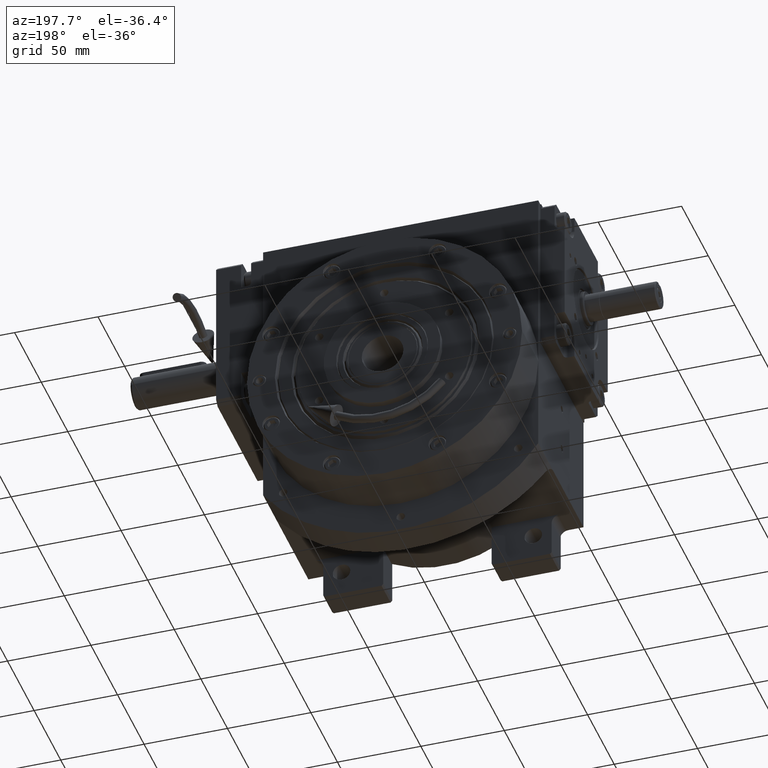
[diagram: clean part render]
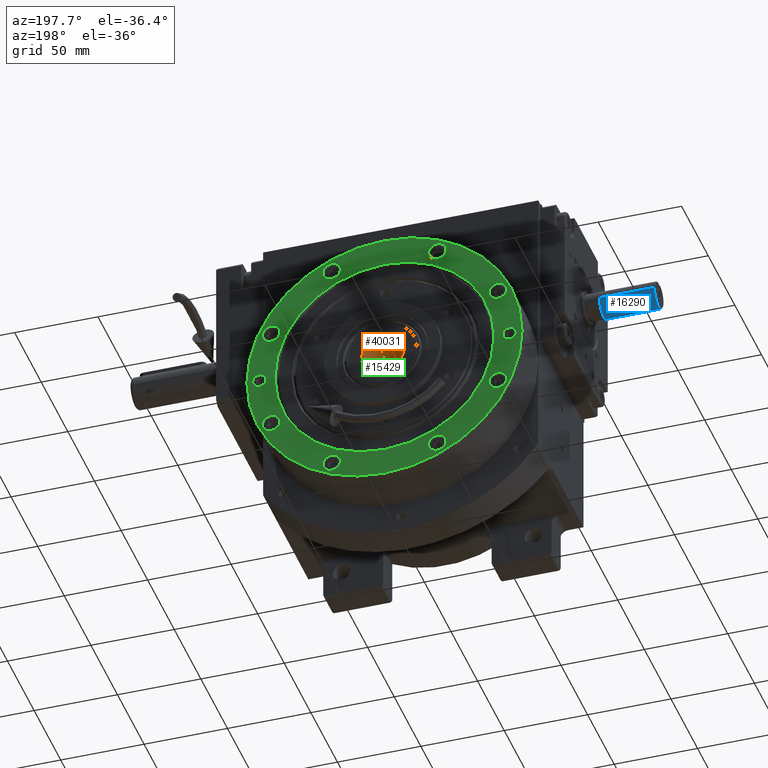
[diagram: same view with three faces highlighted in distinct colors, each labeled with its STEP entity id]
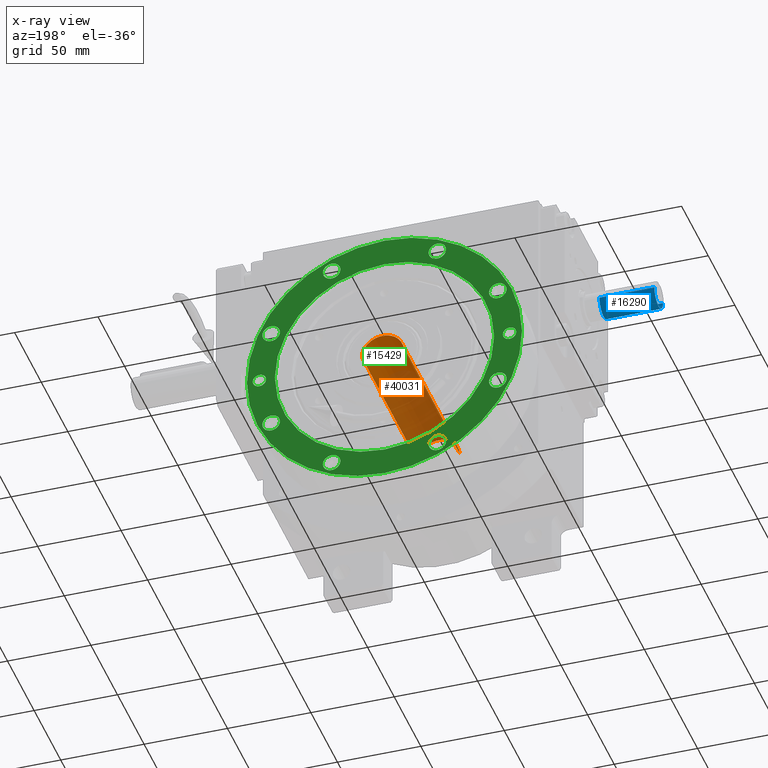
[diagram: x-ray of the same camera — body ghosted, the three highlighted faces saturated]
A machine part, auxiliary view with three faces highlighted in distinct colors.
The next image is the same camera in x-ray (body ghosted, the three faces saturated) — at least one of them is partly hidden behind the body in this view.
Their STEP definitions:

[orange] entity #40031 — the highlighted cylindrical surface (edge-blend (fillet) strip) has radius 12.5 mm, axis along (0, -1, 0).
#1316 = ORIENTED_EDGE ( 'NONE', *, *, #71562, .T. ) ;
#1391 = CARTESIAN_POINT ( 'NONE',  ( 0.000000000000000000, 0.000000000000000000, 11.99999999999986677 ) ) ;
#1482 = DIRECTION ( 'NONE',  ( -1.000000000000000000, 0.000000000000000000, 0.000000000000000000 ) ) ;
#3421 = VERTEX_POINT ( 'NONE', #45097 ) ;
#3907 = EDGE_CURVE ( 'NONE', #3421, #25328, #58682, .T. ) ;
#8413 = AXIS2_PLACEMENT_3D ( 'NONE', #35480, #69776, #1482 ) ;
#12943 = CYLINDRICAL_SURFACE ( 'NONE', #8413, 12.50000000000000000 ) ;
#15802 = DIRECTION ( 'NONE',  ( 0.000000000000000000, 0.000000000000000000, -1.000000000000000000 ) ) ;
#17930 = VECTOR ( 'NONE', #15802, 1000.000000000000000 ) ;
#19387 = VERTEX_POINT ( 'NONE', #57423 ) ;
#20813 = VECTOR ( 'NONE', #55959, 1000.000000000000000 ) ;
#22859 = DIRECTION ( 'NONE',  ( -1.000000000000000000, 0.000000000000000000, 0.000000000000000000 ) ) ;
#25328 = VERTEX_POINT ( 'NONE', #34614 ) ;
#26867 = AXIS2_PLACEMENT_3D ( 'NONE', #1391, #50915, #22859 ) ;
#31714 = LINE ( 'NONE', #49416, #17930 ) ;
#33248 = CARTESIAN_POINT ( 'NONE',  ( -12.50000000000000000, 7.343775652694783940E-16, -93.49999999999894840 ) ) ;
#34614 = CARTESIAN_POINT ( 'NONE',  ( 12.50000000000000000, 1.245138432463821498E-15, 11.99999999999986677 ) ) ;
#35480 = CARTESIAN_POINT ( 'NONE',  ( 0.000000000000000000, 2.203979728755689482E-15, 11.99999999999986677 ) ) ;
#36015 = EDGE_CURVE ( 'NONE', #42532, #19387, #49209, .T. ) ;
#36368 = DIRECTION ( 'NONE',  ( -1.000000000000000000, 0.000000000000000000, 0.000000000000000000 ) ) ;
#37568 = ORIENTED_EDGE ( 'NONE', *, *, #3907, .F. ) ;
#39332 = CARTESIAN_POINT ( 'NONE',  ( -12.50000000000000000, 2.203979728755689482E-15, 11.99999999999986677 ) ) ;
#39816 = AXIS2_PLACEMENT_3D ( 'NONE', #51923, #41559, #36368 ) ;
#40031 = ADVANCED_FACE ( 'NONE', ( #55814 ), #12943, .F. ) ;
#41559 = DIRECTION ( 'NONE',  ( 0.000000000000000000, 0.000000000000000000, -1.000000000000000000 ) ) ;
#42532 = VERTEX_POINT ( 'NONE', #33248 ) ;
#45097 = CARTESIAN_POINT ( 'NONE',  ( -12.50000000000000000, 7.343775652694783940E-16, 11.99999999999986677 ) ) ;
#47519 = EDGE_LOOP ( 'NONE', ( #1316, #70403, #58857, #37568 ) ) ;
#49209 = CIRCLE ( 'NONE', #39816, 12.50000000000000000 ) ;
#49416 = CARTESIAN_POINT ( 'NONE',  ( 12.50000000000000000, 3.735415297391464495E-15, 11.99999999999986677 ) ) ;
#50915 = DIRECTION ( 'NONE',  ( 0.000000000000000000, 0.000000000000000000, -1.000000000000000000 ) ) ;
#51923 = CARTESIAN_POINT ( 'NONE',  ( 0.000000000000000000, 0.000000000000000000, -93.49999999999894840 ) ) ;
#55814 = FACE_OUTER_BOUND ( 'NONE', #47519, .T. ) ;
#55959 = DIRECTION ( 'NONE',  ( 0.000000000000000000, 0.000000000000000000, -1.000000000000000000 ) ) ;
#57423 = CARTESIAN_POINT ( 'NONE',  ( 12.50000000000000000, 1.245138432463821498E-15, -93.49999999999894840 ) ) ;
#58682 = CIRCLE ( 'NONE', #26867, 12.50000000000000000 ) ;
#58857 = ORIENTED_EDGE ( 'NONE', *, *, #66702, .F. ) ;
#61469 = LINE ( 'NONE', #39332, #20813 ) ;
#66702 = EDGE_CURVE ( 'NONE', #25328, #19387, #31714, .T. ) ;
#69776 = DIRECTION ( 'NONE',  ( 0.000000000000000000, 0.000000000000000000, 1.000000000000000000 ) ) ;
#70403 = ORIENTED_EDGE ( 'NONE', *, *, #36015, .T. ) ;
#71562 = EDGE_CURVE ( 'NONE', #3421, #42532, #61469, .T. ) ;

[blue] entity #16290 — the highlighted cylindrical surface (edge-blend (fillet) strip) has radius 8 mm, axis along (-1, -0, 0).
#176 = CARTESIAN_POINT ( 'NONE',  ( -6.106226635438360972E-13, -14.50000000000001243, -8.000000000000101252 ) ) ;
#217 = AXIS2_PLACEMENT_3D ( 'NONE', #7861, #30426, #24170 ) ;
#4714 = ORIENTED_EDGE ( 'NONE', *, *, #49045, .F. ) ;
#5266 = VECTOR ( 'NONE', #9785, 1000.000000000000000 ) ;
#7133 = CYLINDRICAL_SURFACE ( 'NONE', #217, 8.000000000000000000 ) ;
#7215 = DIRECTION ( 'NONE',  ( -2.220446049250370273E-16, -1.000000000000000000, 2.220446049249956368E-16 ) ) ;
#7861 = CARTESIAN_POINT ( 'NONE',  ( -8.326672684688674053E-14, -15.00000000000001421, -2.785665071561697938E-27 ) ) ;
#9785 = DIRECTION ( 'NONE',  ( 5.028988270783950259E-30, 1.000000000000000000, 3.229378983239138002E-29 ) ) ;
#10875 = CARTESIAN_POINT ( 'NONE',  ( 0.000000000000000000, 18.50000000000054357, -8.881784196996637487E-16 ) ) ;
#14485 = VERTEX_POINT ( 'NONE', #22845 ) ;
#16290 = ADVANCED_FACE ( 'NONE', ( #41159 ), #7133, .T. ) ;
#17152 = AXIS2_PLACEMENT_3D ( 'NONE', #53037, #7215, #34565 ) ;
#17584 = DIRECTION ( 'NONE',  ( 5.028988270783950259E-30, 1.000000000000000000, 3.229378983239138002E-29 ) ) ;
#18296 = CARTESIAN_POINT ( 'NONE',  ( -5.551115123125782702E-14, 18.50000000000054357, -8.000000000000101252 ) ) ;
#22733 = EDGE_CURVE ( 'NONE', #66054, #56257, #49352, .T. ) ;
#22845 = CARTESIAN_POINT ( 'NONE',  ( -8.326672684688674053E-14, 18.50000000000054357, -8.000000000000101252 ) ) ;
#22988 = ORIENTED_EDGE ( 'NONE', *, *, #22733, .F. ) ;
#23247 = VECTOR ( 'NONE', #40837, 1000.000000000000000 ) ;
#24170 = DIRECTION ( 'NONE',  ( -1.809663530139005476E-14, 0.000000000000000000, -1.000000000000000000 ) ) ;
#30426 = DIRECTION ( 'NONE',  ( -5.028988270783950259E-30, -1.000000000000000000, -3.229378983239138002E-29 ) ) ;
#30471 = LINE ( 'NONE', #18296, #23247 ) ;
#34565 = DIRECTION ( 'NONE',  ( -1.774068363909806881E-14, -2.168404344971008868E-16, -1.000000000000000000 ) ) ;
#37087 = ORIENTED_EDGE ( 'NONE', *, *, #71696, .F. ) ;
#38251 = CARTESIAN_POINT ( 'NONE',  ( 7.494005416219806648E-13, -14.50000000000001243, 7.999999999999899636 ) ) ;
#40837 = DIRECTION ( 'NONE',  ( -5.028988270783950259E-30, -1.000000000000000000, -3.229378983239138002E-29 ) ) ;
#41159 = FACE_OUTER_BOUND ( 'NONE', #43372, .T. ) ;
#43372 = EDGE_LOOP ( 'NONE', ( #37087, #52684, #22988, #4714 ) ) ;
#48899 = AXIS2_PLACEMENT_3D ( 'NONE', #10875, #17584, #56704 ) ;
#49045 = EDGE_CURVE ( 'NONE', #67851, #66054, #69003, .T. ) ;
#49352 = LINE ( 'NONE', #38251, #5266 ) ;
#52684 = ORIENTED_EDGE ( 'NONE', *, *, #67962, .F. ) ;
#53037 = CARTESIAN_POINT ( 'NONE',  ( -8.326672684688674053E-14, -14.50000000000001243, -8.881784197022707368E-16 ) ) ;
#53655 = CIRCLE ( 'NONE', #48899, 8.000000000000000000 ) ;
#56257 = VERTEX_POINT ( 'NONE', #57671 ) ;
#56305 = CARTESIAN_POINT ( 'NONE',  ( 1.065506016750816798E-08, -14.50000000007528556, 7.999999999924608751 ) ) ;
#56704 = DIRECTION ( 'NONE',  ( 1.797417062147531962E-14, 0.000000000000000000, 1.000000000000000000 ) ) ;
#57671 = CARTESIAN_POINT ( 'NONE',  ( 5.273559366969493567E-13, 18.50000000000054357, 7.999999999999899636 ) ) ;
#66054 = VERTEX_POINT ( 'NONE', #56305 ) ;
#67851 = VERTEX_POINT ( 'NONE', #176 ) ;
#67962 = EDGE_CURVE ( 'NONE', #56257, #14485, #53655, .T. ) ;
#69003 = CIRCLE ( 'NONE', #17152, 8.000000000000000000 ) ;
#71696 = EDGE_CURVE ( 'NONE', #14485, #67851, #30471, .T. ) ;

[green] entity #15429 — the highlighted planar face has unit normal (0, 1, 0).
#469 = ORIENTED_EDGE ( 'NONE', *, *, #10626, .F. ) ;
#869 = CARTESIAN_POINT ( 'NONE',  ( 78.99999999999998579, 0.000000000000000000, 30.49999999999998579 ) ) ;
#1079 = CARTESIAN_POINT ( 'NONE',  ( 67.97308402774999081, -31.69636963055000223, 30.49999999999998579 ) ) ;
#1538 = EDGE_CURVE ( 'NONE', #57449, #18205, #58363, .T. ) ;
#1681 = EDGE_LOOP ( 'NONE', ( #52790, #57513 ) ) ;
#1697 = AXIS2_PLACEMENT_3D ( 'NONE', #17648, #18005, #63029 ) ;
#1701 = AXIS2_PLACEMENT_3D ( 'NONE', #15115, #32840, #27279 ) ;
#1981 = VERTEX_POINT ( 'NONE', #11374 ) ;
#2376 = ORIENTED_EDGE ( 'NONE', *, *, #42807, .F. ) ;
#2611 = EDGE_LOOP ( 'NONE', ( #4229, #24215 ) ) ;
#3260 = CARTESIAN_POINT ( 'NONE',  ( 67.97308402774999081, 31.69636963055000223, 30.49999999999998579 ) ) ;
#3492 = ORIENTED_EDGE ( 'NONE', *, *, #1538, .T. ) ;
#3794 = DIRECTION ( 'NONE',  ( 0.000000000000000000, 0.000000000000000000, 1.000000000000000000 ) ) ;
#3918 = ORIENTED_EDGE ( 'NONE', *, *, #48040, .T. ) ;
#4229 = ORIENTED_EDGE ( 'NONE', *, *, #62487, .F. ) ;
#5379 = VERTEX_POINT ( 'NONE', #52303 ) ;
#5516 = ORIENTED_EDGE ( 'NONE', *, *, #43937, .T. ) ;
#7055 = AXIS2_PLACEMENT_3D ( 'NONE', #72183, #20964, #22409 ) ;
#7336 = DIRECTION ( 'NONE',  ( -1.000000000000000000, 0.000000000000000000, 0.000000000000000000 ) ) ;
#7669 = CIRCLE ( 'NONE', #30111, 5.249999999999997335 ) ;
#7707 = AXIS2_PLACEMENT_3D ( 'NONE', #15123, #66075, #48370 ) ;
#7837 = EDGE_CURVE ( 'NONE', #21173, #8966, #7669, .T. ) ;
#8152 = ORIENTED_EDGE ( 'NONE', *, *, #51366, .F. ) ;
#8206 = VERTEX_POINT ( 'NONE', #869 ) ;
#8315 = VERTEX_POINT ( 'NONE', #24543 ) ;
#8326 = AXIS2_PLACEMENT_3D ( 'NONE', #3260, #25836, #48338 ) ;
#8540 = CARTESIAN_POINT ( 'NONE',  ( 36.94636963055000223, -67.97308402775000502, 30.49999999999998579 ) ) ;
#8610 = EDGE_CURVE ( 'NONE', #24374, #22148, #18361, .T. ) ;
#8780 = VERTEX_POINT ( 'NONE', #30961 ) ;
#8801 = EDGE_LOOP ( 'NONE', ( #2376, #36050 ) ) ;
#8852 = FACE_BOUND ( 'NONE', #2611, .T. ) ;
#8966 = VERTEX_POINT ( 'NONE', #71869 ) ;
#9001 = DIRECTION ( 'NONE',  ( 1.000000000000000000, 0.000000000000000000, 0.000000000000000000 ) ) ;
#9298 = DIRECTION ( 'NONE',  ( 0.000000000000000000, 0.000000000000000000, 1.000000000000000000 ) ) ;
#9380 = CARTESIAN_POINT ( 'NONE',  ( 0.000000000000000000, 0.000000000000000000, 30.49999999999998579 ) ) ;
#10144 = CIRCLE ( 'NONE', #31379, 5.250000000000004441 ) ;
#10432 = DIRECTION ( 'NONE',  ( 0.000000000000000000, 0.000000000000000000, -1.000000000000000000 ) ) ;
#10626 = EDGE_CURVE ( 'NONE', #69039, #63281, #31100, .T. ) ;
#11311 = AXIS2_PLACEMENT_3D ( 'NONE', #71357, #3794, #15629 ) ;
#11374 = CARTESIAN_POINT ( 'NONE',  ( -26.44636963054999867, 67.97308402775000502, 30.49999999999998579 ) ) ;
#12546 = EDGE_CURVE ( 'NONE', #63281, #69039, #47850, .T. ) ;
#13358 = DIRECTION ( 'NONE',  ( 0.000000000000000000, 0.000000000000000000, 1.000000000000000000 ) ) ;
#13761 = EDGE_LOOP ( 'NONE', ( #3918, #66646 ) ) ;
#14168 = CARTESIAN_POINT ( 'NONE',  ( 26.44636963054999867, -67.97308402775000502, 30.49999999999998579 ) ) ;
#14312 = AXIS2_PLACEMENT_3D ( 'NONE', #64844, #65203, #31234 ) ;
#14396 = FACE_BOUND ( 'NONE', #39495, .T. ) ;
#15078 = ORIENTED_EDGE ( 'NONE', *, *, #17703, .T. ) ;
#15115 = CARTESIAN_POINT ( 'NONE',  ( -31.69636963055000223, 67.97308402775000502, 30.49999999999998579 ) ) ;
#15123 = CARTESIAN_POINT ( 'NONE',  ( -67.97308402775001923, -31.69636963055000223, 30.49999999999998579 ) ) ;
#15429 = ADVANCED_FACE ( 'NONE', ( #45923, #68426, #62882, #48400, #8852, #70520, #38027, #49484, #48038, #53947, #36910, #14396 ), #65747, .T. ) ;
#15629 = DIRECTION ( 'NONE',  ( -1.000000000000000000, 0.000000000000000000, 0.000000000000000000 ) ) ;
#16478 = DIRECTION ( 'NONE',  ( 1.000000000000000000, 0.000000000000000000, 0.000000000000000000 ) ) ;
#16515 = CIRCLE ( 'NONE', #7055, 5.250000000000000888 ) ;
#16534 = CIRCLE ( 'NONE', #36590, 4.000000000000003553 ) ;
#16639 = CIRCLE ( 'NONE', #8326, 5.250000000000004441 ) ;
#17619 = CARTESIAN_POINT ( 'NONE',  ( -31.69636963055000223, -67.97308402775000502, 30.49999999999998579 ) ) ;
#17648 = CARTESIAN_POINT ( 'NONE',  ( -31.69636963055000223, -67.97308402775000502, 30.49999999999998579 ) ) ;
#17703 = EDGE_CURVE ( 'NONE', #28114, #55498, #33215, .T. ) ;
#17964 = ORIENTED_EDGE ( 'NONE', *, *, #23557, .F. ) ;
#18005 = DIRECTION ( 'NONE',  ( 0.000000000000000000, 0.000000000000000000, 1.000000000000000000 ) ) ;
#18205 = VERTEX_POINT ( 'NONE', #38048 ) ;
#18361 = CIRCLE ( 'NONE', #54937, 5.250000000000004441 ) ;
#18948 = CARTESIAN_POINT ( 'NONE',  ( 31.69636963055000223, -67.97308402775000502, 30.49999999999998579 ) ) ;
#20195 = EDGE_CURVE ( 'NONE', #18205, #21875, #70942, .T. ) ;
#20480 = VERTEX_POINT ( 'NONE', #59469 ) ;
#20964 = DIRECTION ( 'NONE',  ( 0.000000000000000000, 0.000000000000000000, 1.000000000000000000 ) ) ;
#21173 = VERTEX_POINT ( 'NONE', #24202 ) ;
#21312 = CARTESIAN_POINT ( 'NONE',  ( -73.22308402774999081, 31.69636963055000223, 30.49999999999998579 ) ) ;
#21331 = AXIS2_PLACEMENT_3D ( 'NONE', #33336, #10432, #72057 ) ;
#21417 = CARTESIAN_POINT ( 'NONE',  ( 36.94636963055000223, 67.97308402775000502, 30.49999999999998579 ) ) ;
#21535 = DIRECTION ( 'NONE',  ( 0.000000000000000000, 0.000000000000000000, -1.000000000000000000 ) ) ;
#21875 = VERTEX_POINT ( 'NONE', #22913 ) ;
#22146 = DIRECTION ( 'NONE',  ( -1.000000000000000000, 0.000000000000000000, 0.000000000000000000 ) ) ;
#22148 = VERTEX_POINT ( 'NONE', #48702 ) ;
#22248 = AXIS2_PLACEMENT_3D ( 'NONE', #42592, #44406, #55121 ) ;
#22333 = CARTESIAN_POINT ( 'NONE',  ( 74.99999999999998579, 0.000000000000000000, 30.49999999999998579 ) ) ;
#22409 = DIRECTION ( 'NONE',  ( -1.000000000000000000, 0.000000000000000000, 0.000000000000000000 ) ) ;
#22913 = CARTESIAN_POINT ( 'NONE',  ( 2.060573933704000491E-13, -65.72795184287261350, 30.49999232217000156 ) ) ;
#23073 = DIRECTION ( 'NONE',  ( -1.000000000000000000, 0.000000000000000000, 0.000000000000000000 ) ) ;
#23315 = DIRECTION ( 'NONE',  ( 0.000000000000000000, 0.000000000000000000, 1.000000000000000000 ) ) ;
#23557 = EDGE_CURVE ( 'NONE', #52402, #8780, #38420, .T. ) ;
#23637 = CARTESIAN_POINT ( 'NONE',  ( 67.97308402774999081, -31.69636963055000223, 30.49999999999998579 ) ) ;
#23659 = DIRECTION ( 'NONE',  ( 0.000000000000000000, 0.000000000000000000, 1.000000000000000000 ) ) ;
#24097 = EDGE_CURVE ( 'NONE', #8966, #21173, #55951, .T. ) ;
#24126 = CIRCLE ( 'NONE', #35892, 82.50000000000000000 ) ;
#24131 = DIRECTION ( 'NONE',  ( -1.000000000000000000, 0.000000000000000000, 0.000000000000000000 ) ) ;
#24202 = CARTESIAN_POINT ( 'NONE',  ( -36.94636963055000223, -67.97308402775000502, 30.49999999999998579 ) ) ;
#24215 = ORIENTED_EDGE ( 'NONE', *, *, #38872, .F. ) ;
#24374 = VERTEX_POINT ( 'NONE', #48976 ) ;
#24435 = CIRCLE ( 'NONE', #29092, 5.249999999999997335 ) ;
#24532 = ORIENTED_EDGE ( 'NONE', *, *, #24097, .F. ) ;
#24543 = CARTESIAN_POINT ( 'NONE',  ( 62.72308402774998370, 31.69636963055000223, 30.49999999999998579 ) ) ;
#25836 = DIRECTION ( 'NONE',  ( 0.000000000000000000, 0.000000000000000000, 1.000000000000000000 ) ) ;
#26246 = DIRECTION ( 'NONE',  ( 1.000000000000000000, 0.000000000000000000, 0.000000000000000000 ) ) ;
#26650 = ORIENTED_EDGE ( 'NONE', *, *, #34204, .T. ) ;
#26814 = CIRCLE ( 'NONE', #43315, 65.72795184286999870 ) ;
#27041 = CARTESIAN_POINT ( 'NONE',  ( 1.918465386552000143E-13, 1.438849039913999161E-13, 30.49999232217000156 ) ) ;
#27219 = ORIENTED_EDGE ( 'NONE', *, *, #66018, .T. ) ;
#27279 = DIRECTION ( 'NONE',  ( -1.000000000000000000, 0.000000000000000000, 0.000000000000000000 ) ) ;
#28114 = VERTEX_POINT ( 'NONE', #60832 ) ;
#28277 = DIRECTION ( 'NONE',  ( 0.000000000000000000, 0.000000000000000000, 1.000000000000000000 ) ) ;
#28549 = AXIS2_PLACEMENT_3D ( 'NONE', #66572, #21535, #61367 ) ;
#28982 = EDGE_LOOP ( 'NONE', ( #24532, #44506 ) ) ;
#29092 = AXIS2_PLACEMENT_3D ( 'NONE', #37374, #9298, #64365 ) ;
#29778 = DIRECTION ( 'NONE',  ( -1.000000000000000000, 0.000000000000000000, 0.000000000000000000 ) ) ;
#29901 = DIRECTION ( 'NONE',  ( 0.000000000000000000, 0.000000000000000000, 1.000000000000000000 ) ) ;
#30111 = AXIS2_PLACEMENT_3D ( 'NONE', #17619, #34571, #29778 ) ;
#30256 = EDGE_LOOP ( 'NONE', ( #47448, #70600 ) ) ;
#30373 = ORIENTED_EDGE ( 'NONE', *, *, #47289, .F. ) ;
#30776 = CARTESIAN_POINT ( 'NONE',  ( -65.72795184286999870, 0.000000000000000000, 30.49999232217000156 ) ) ;
#30961 = CARTESIAN_POINT ( 'NONE',  ( -73.22308402774999081, -31.69636963055000223, 30.49999999999998579 ) ) ;
#31100 = CIRCLE ( 'NONE', #49968, 5.250000000000004441 ) ;
#31234 = DIRECTION ( 'NONE',  ( 1.000000000000000000, 0.000000000000000000, 0.000000000000000000 ) ) ;
#31333 = VERTEX_POINT ( 'NONE', #21417 ) ;
#31379 = AXIS2_PLACEMENT_3D ( 'NONE', #1079, #23659, #46151 ) ;
#31694 = VERTEX_POINT ( 'NONE', #67800 ) ;
#31786 = CARTESIAN_POINT ( 'NONE',  ( 0.000000000000000000, 0.000000000000000000, 30.49999999999998579 ) ) ;
#31947 = CARTESIAN_POINT ( 'NONE',  ( -79.00000000000001421, 1.374620632166009432E-14, 30.49999999999998579 ) ) ;
#32840 = DIRECTION ( 'NONE',  ( 0.000000000000000000, 0.000000000000000000, 1.000000000000000000 ) ) ;
#32864 = EDGE_CURVE ( 'NONE', #8315, #5379, #57333, .T. ) ;
#33215 = CIRCLE ( 'NONE', #14312, 4.000000000000003553 ) ;
#33336 = CARTESIAN_POINT ( 'NONE',  ( 74.99999999999998579, 0.000000000000000000, 30.49999999999998579 ) ) ;
#34137 = DIRECTION ( 'NONE',  ( 0.000000000000000000, 0.000000000000000000, -1.000000000000000000 ) ) ;
#34204 = EDGE_CURVE ( 'NONE', #21875, #57449, #26814, .T. ) ;
#34355 = CARTESIAN_POINT ( 'NONE',  ( 0.000000000000000000, 0.000000000000000000, 30.49999999999998579 ) ) ;
#34571 = DIRECTION ( 'NONE',  ( 0.000000000000000000, 0.000000000000000000, 1.000000000000000000 ) ) ;
#34670 = DIRECTION ( 'NONE',  ( -1.000000000000000000, 0.000000000000000000, 0.000000000000000000 ) ) ;
#34922 = CIRCLE ( 'NONE', #44374, 4.000000000000003553 ) ;
#35196 = CIRCLE ( 'NONE', #22248, 5.249999999999997335 ) ;
#35892 = AXIS2_PLACEMENT_3D ( 'NONE', #9380, #47833, #70320 ) ;
#36050 = ORIENTED_EDGE ( 'NONE', *, *, #32864, .F. ) ;
#36590 = AXIS2_PLACEMENT_3D ( 'NONE', #67027, #34137, #23073 ) ;
#36910 = FACE_BOUND ( 'NONE', #57787, .T. ) ;
#37057 = DIRECTION ( 'NONE',  ( 0.000000000000000000, 0.000000000000000000, -1.000000000000000000 ) ) ;
#37374 = CARTESIAN_POINT ( 'NONE',  ( 31.69636963055000223, 67.97308402775000502, 30.49999999999998579 ) ) ;
#37815 = EDGE_LOOP ( 'NONE', ( #5516, #68865 ) ) ;
#38027 = FACE_BOUND ( 'NONE', #63221, .T. ) ;
#38048 = CARTESIAN_POINT ( 'NONE',  ( 65.72795184286999870, 1.310051197827999923E-14, 30.49999232217000156 ) ) ;
#38420 = CIRCLE ( 'NONE', #7707, 5.250000000000004441 ) ;
#38756 = CIRCLE ( 'NONE', #57634, 82.50000000000000000 ) ;
#38872 = EDGE_CURVE ( 'NONE', #53030, #31333, #16515, .T. ) ;
#39325 = AXIS2_PLACEMENT_3D ( 'NONE', #31786, #54306, #26246 ) ;
#39413 = CARTESIAN_POINT ( 'NONE',  ( -31.69636963055000223, 67.97308402775000502, 30.49999999999998579 ) ) ;
#39495 = EDGE_LOOP ( 'NONE', ( #3492, #43156, #26650 ) ) ;
#40402 = DIRECTION ( 'NONE',  ( -1.000000000000000000, 0.000000000000000000, 0.000000000000000000 ) ) ;
#42592 = CARTESIAN_POINT ( 'NONE',  ( 31.69636963055000223, -67.97308402775000502, 30.49999999999998579 ) ) ;
#42643 = CARTESIAN_POINT ( 'NONE',  ( 2.060573933704000491E-13, 4.440892098501000776E-13, 30.49999232217000156 ) ) ;
#42807 = EDGE_CURVE ( 'NONE', #5379, #8315, #16639, .T. ) ;
#43156 = ORIENTED_EDGE ( 'NONE', *, *, #20195, .T. ) ;
#43315 = AXIS2_PLACEMENT_3D ( 'NONE', #42643, #37057, #9001 ) ;
#43937 = EDGE_CURVE ( 'NONE', #8206, #60231, #66128, .T. ) ;
#44250 = DIRECTION ( 'NONE',  ( 1.000000000000000000, 0.000000000000000000, 0.000000000000000000 ) ) ;
#44287 = DIRECTION ( 'NONE',  ( 0.000000000000000000, 0.000000000000000000, 1.000000000000000000 ) ) ;
#44374 = AXIS2_PLACEMENT_3D ( 'NONE', #22333, #68086, #40402 ) ;
#44385 = EDGE_CURVE ( 'NONE', #1981, #68950, #69676, .T. ) ;
#44406 = DIRECTION ( 'NONE',  ( 0.000000000000000000, 0.000000000000000000, 1.000000000000000000 ) ) ;
#44506 = ORIENTED_EDGE ( 'NONE', *, *, #7837, .F. ) ;
#44752 = DIRECTION ( 'NONE',  ( -1.000000000000000000, 0.000000000000000000, 0.000000000000000000 ) ) ;
#45874 = ORIENTED_EDGE ( 'NONE', *, *, #8610, .F. ) ;
#45923 = FACE_OUTER_BOUND ( 'NONE', #13761, .T. ) ;
#46151 = DIRECTION ( 'NONE',  ( 1.000000000000000000, 0.000000000000000000, 0.000000000000000000 ) ) ;
#46342 = CIRCLE ( 'NONE', #58150, 5.250000000000000888 ) ;
#46428 = CARTESIAN_POINT ( 'NONE',  ( 26.44636963054999867, 67.97308402775000502, 30.49999999999998579 ) ) ;
#46550 = EDGE_CURVE ( 'NONE', #71766, #68092, #46342, .T. ) ;
#47289 = EDGE_CURVE ( 'NONE', #8780, #52402, #58250, .T. ) ;
#47448 = ORIENTED_EDGE ( 'NONE', *, *, #44385, .F. ) ;
#47591 = CARTESIAN_POINT ( 'NONE',  ( -67.97308402775001923, 31.69636963055000223, 30.49999999999998579 ) ) ;
#47833 = DIRECTION ( 'NONE',  ( 0.000000000000000000, 0.000000000000000000, 1.000000000000000000 ) ) ;
#47850 = CIRCLE ( 'NONE', #52545, 5.250000000000004441 ) ;
#48038 = FACE_BOUND ( 'NONE', #28982, .T. ) ;
#48040 = EDGE_CURVE ( 'NONE', #31694, #20480, #24126, .T. ) ;
#48338 = DIRECTION ( 'NONE',  ( 1.000000000000000000, 0.000000000000000000, 0.000000000000000000 ) ) ;
#48370 = DIRECTION ( 'NONE',  ( 1.000000000000000000, 0.000000000000000000, 0.000000000000000000 ) ) ;
#48400 = FACE_BOUND ( 'NONE', #8801, .T. ) ;
#48702 = CARTESIAN_POINT ( 'NONE',  ( 73.22308402774999081, -31.69636963055000223, 30.49999999999998579 ) ) ;
#48976 = CARTESIAN_POINT ( 'NONE',  ( 62.72308402774998370, -31.69636963055000223, 30.49999999999998579 ) ) ;
#49484 = FACE_BOUND ( 'NONE', #57508, .T. ) ;
#49554 = DIRECTION ( 'NONE',  ( 0.000000000000000000, 0.000000000000000000, -1.000000000000000000 ) ) ;
#49968 = AXIS2_PLACEMENT_3D ( 'NONE', #47591, #29901, #7336 ) ;
#51366 = EDGE_CURVE ( 'NONE', #22148, #24374, #10144, .T. ) ;
#51737 = DIRECTION ( 'NONE',  ( 1.000000000000000000, 0.000000000000000000, 0.000000000000000000 ) ) ;
#52303 = CARTESIAN_POINT ( 'NONE',  ( 73.22308402774999081, 31.69636963055000223, 30.49999999999998579 ) ) ;
#52402 = VERTEX_POINT ( 'NONE', #60558 ) ;
#52545 = AXIS2_PLACEMENT_3D ( 'NONE', #67064, #28277, #16478 ) ;
#52730 = CARTESIAN_POINT ( 'NONE',  ( 70.99999999999998579, 0.000000000000000000, 30.49999999999998579 ) ) ;
#52790 = ORIENTED_EDGE ( 'NONE', *, *, #64401, .F. ) ;
#53030 = VERTEX_POINT ( 'NONE', #46428 ) ;
#53714 = EDGE_CURVE ( 'NONE', #20480, #31694, #38756, .T. ) ;
#53947 = FACE_BOUND ( 'NONE', #1681, .T. ) ;
#54200 = CARTESIAN_POINT ( 'NONE',  ( -36.94636963055000223, 67.97308402775000502, 30.49999999999998579 ) ) ;
#54306 = DIRECTION ( 'NONE',  ( 0.000000000000000000, 0.000000000000000000, 1.000000000000000000 ) ) ;
#54937 = AXIS2_PLACEMENT_3D ( 'NONE', #23637, #68632, #34670 ) ;
#55121 = DIRECTION ( 'NONE',  ( 1.000000000000000000, 0.000000000000000000, 0.000000000000000000 ) ) ;
#55414 = ORIENTED_EDGE ( 'NONE', *, *, #12546, .F. ) ;
#55498 = VERTEX_POINT ( 'NONE', #31947 ) ;
#55951 = CIRCLE ( 'NONE', #1697, 5.250000000000000888 ) ;
#57333 = CIRCLE ( 'NONE', #11311, 5.250000000000004441 ) ;
#57449 = VERTEX_POINT ( 'NONE', #30776 ) ;
#57508 = EDGE_LOOP ( 'NONE', ( #17964, #30373 ) ) ;
#57513 = ORIENTED_EDGE ( 'NONE', *, *, #46550, .F. ) ;
#57634 = AXIS2_PLACEMENT_3D ( 'NONE', #34355, #23315, #51737 ) ;
#57787 = EDGE_LOOP ( 'NONE', ( #8152, #45874 ) ) ;
#58150 = AXIS2_PLACEMENT_3D ( 'NONE', #18948, #13358, #24131 ) ;
#58250 = CIRCLE ( 'NONE', #68833, 5.250000000000004441 ) ;
#58363 = CIRCLE ( 'NONE', #63047, 65.72795184286999870 ) ;
#59082 = AXIS2_PLACEMENT_3D ( 'NONE', #39413, #67134, #44250 ) ;
#59469 = CARTESIAN_POINT ( 'NONE',  ( 82.49999999999998579, -1.010300241903009221E-14, 30.49999999999998579 ) ) ;
#60231 = VERTEX_POINT ( 'NONE', #52730 ) ;
#60558 = CARTESIAN_POINT ( 'NONE',  ( -62.72308402775001213, -31.69636963055000223, 30.49999999999998579 ) ) ;
#60832 = CARTESIAN_POINT ( 'NONE',  ( -71.00000000000001421, 1.521575012437008940E-14, 30.49999999999998579 ) ) ;
#61367 = DIRECTION ( 'NONE',  ( 1.000000000000000000, 0.000000000000000000, 0.000000000000000000 ) ) ;
#62487 = EDGE_CURVE ( 'NONE', #31333, #53030, #24435, .T. ) ;
#62882 = FACE_BOUND ( 'NONE', #66076, .T. ) ;
#63029 = DIRECTION ( 'NONE',  ( 1.000000000000000000, 0.000000000000000000, 0.000000000000000000 ) ) ;
#63047 = AXIS2_PLACEMENT_3D ( 'NONE', #27041, #49554, #44752 ) ;
#63221 = EDGE_LOOP ( 'NONE', ( #55414, #469 ) ) ;
#63281 = VERTEX_POINT ( 'NONE', #66917 ) ;
#64365 = DIRECTION ( 'NONE',  ( 1.000000000000000000, 0.000000000000000000, 0.000000000000000000 ) ) ;
#64401 = EDGE_CURVE ( 'NONE', #68092, #71766, #35196, .T. ) ;
#64844 = CARTESIAN_POINT ( 'NONE',  ( -75.00000000000001421, 1.423604886319003288E-14, 30.49999999999998579 ) ) ;
#65203 = DIRECTION ( 'NONE',  ( 0.000000000000000000, 0.000000000000000000, -1.000000000000000000 ) ) ;
#65747 = PLANE ( 'NONE',  #39325 ) ;
#66018 = EDGE_CURVE ( 'NONE', #55498, #28114, #16534, .T. ) ;
#66075 = DIRECTION ( 'NONE',  ( 0.000000000000000000, 0.000000000000000000, 1.000000000000000000 ) ) ;
#66076 = EDGE_LOOP ( 'NONE', ( #15078, #27219 ) ) ;
#66128 = CIRCLE ( 'NONE', #21331, 4.000000000000003553 ) ;
#66555 = CIRCLE ( 'NONE', #1701, 5.249999999999997335 ) ;
#66572 = CARTESIAN_POINT ( 'NONE',  ( 2.060573933704000491E-13, 4.440892098501000776E-13, 30.49999232217000156 ) ) ;
#66646 = ORIENTED_EDGE ( 'NONE', *, *, #53714, .T. ) ;
#66917 = CARTESIAN_POINT ( 'NONE',  ( -62.72308402775001213, 31.69636963055000223, 30.49999999999998579 ) ) ;
#67027 = CARTESIAN_POINT ( 'NONE',  ( -75.00000000000001421, 1.423604886319003288E-14, 30.49999999999998579 ) ) ;
#67064 = CARTESIAN_POINT ( 'NONE',  ( -67.97308402775001923, 31.69636963055000223, 30.49999999999998579 ) ) ;
#67134 = DIRECTION ( 'NONE',  ( 0.000000000000000000, 0.000000000000000000, 1.000000000000000000 ) ) ;
#67276 = EDGE_CURVE ( 'NONE', #68950, #1981, #66555, .T. ) ;
#67800 = CARTESIAN_POINT ( 'NONE',  ( -82.50000000000001421, 2.020633851199993078E-14, 30.49999999999998579 ) ) ;
#68086 = DIRECTION ( 'NONE',  ( 0.000000000000000000, 0.000000000000000000, -1.000000000000000000 ) ) ;
#68092 = VERTEX_POINT ( 'NONE', #8540 ) ;
#68426 = FACE_BOUND ( 'NONE', #37815, .T. ) ;
#68632 = DIRECTION ( 'NONE',  ( 0.000000000000000000, 0.000000000000000000, 1.000000000000000000 ) ) ;
#68833 = AXIS2_PLACEMENT_3D ( 'NONE', #72649, #44287, #22146 ) ;
#68865 = ORIENTED_EDGE ( 'NONE', *, *, #71062, .T. ) ;
#68950 = VERTEX_POINT ( 'NONE', #54200 ) ;
#69039 = VERTEX_POINT ( 'NONE', #21312 ) ;
#69676 = CIRCLE ( 'NONE', #59082, 5.250000000000000888 ) ;
#70320 = DIRECTION ( 'NONE',  ( -1.000000000000000000, 0.000000000000000000, 0.000000000000000000 ) ) ;
#70520 = FACE_BOUND ( 'NONE', #30256, .T. ) ;
#70600 = ORIENTED_EDGE ( 'NONE', *, *, #67276, .F. ) ;
#70942 = CIRCLE ( 'NONE', #28549, 65.72795184286999870 ) ;
#71062 = EDGE_CURVE ( 'NONE', #60231, #8206, #34922, .T. ) ;
#71357 = CARTESIAN_POINT ( 'NONE',  ( 67.97308402774999081, 31.69636963055000223, 30.49999999999998579 ) ) ;
#71766 = VERTEX_POINT ( 'NONE', #14168 ) ;
#71869 = CARTESIAN_POINT ( 'NONE',  ( -26.44636963054999867, -67.97308402775000502, 30.49999999999998579 ) ) ;
#72057 = DIRECTION ( 'NONE',  ( 1.000000000000000000, 0.000000000000000000, 0.000000000000000000 ) ) ;
#72183 = CARTESIAN_POINT ( 'NONE',  ( 31.69636963055000223, 67.97308402775000502, 30.49999999999998579 ) ) ;
#72649 = CARTESIAN_POINT ( 'NONE',  ( -67.97308402775001923, -31.69636963055000223, 30.49999999999998579 ) ) ;